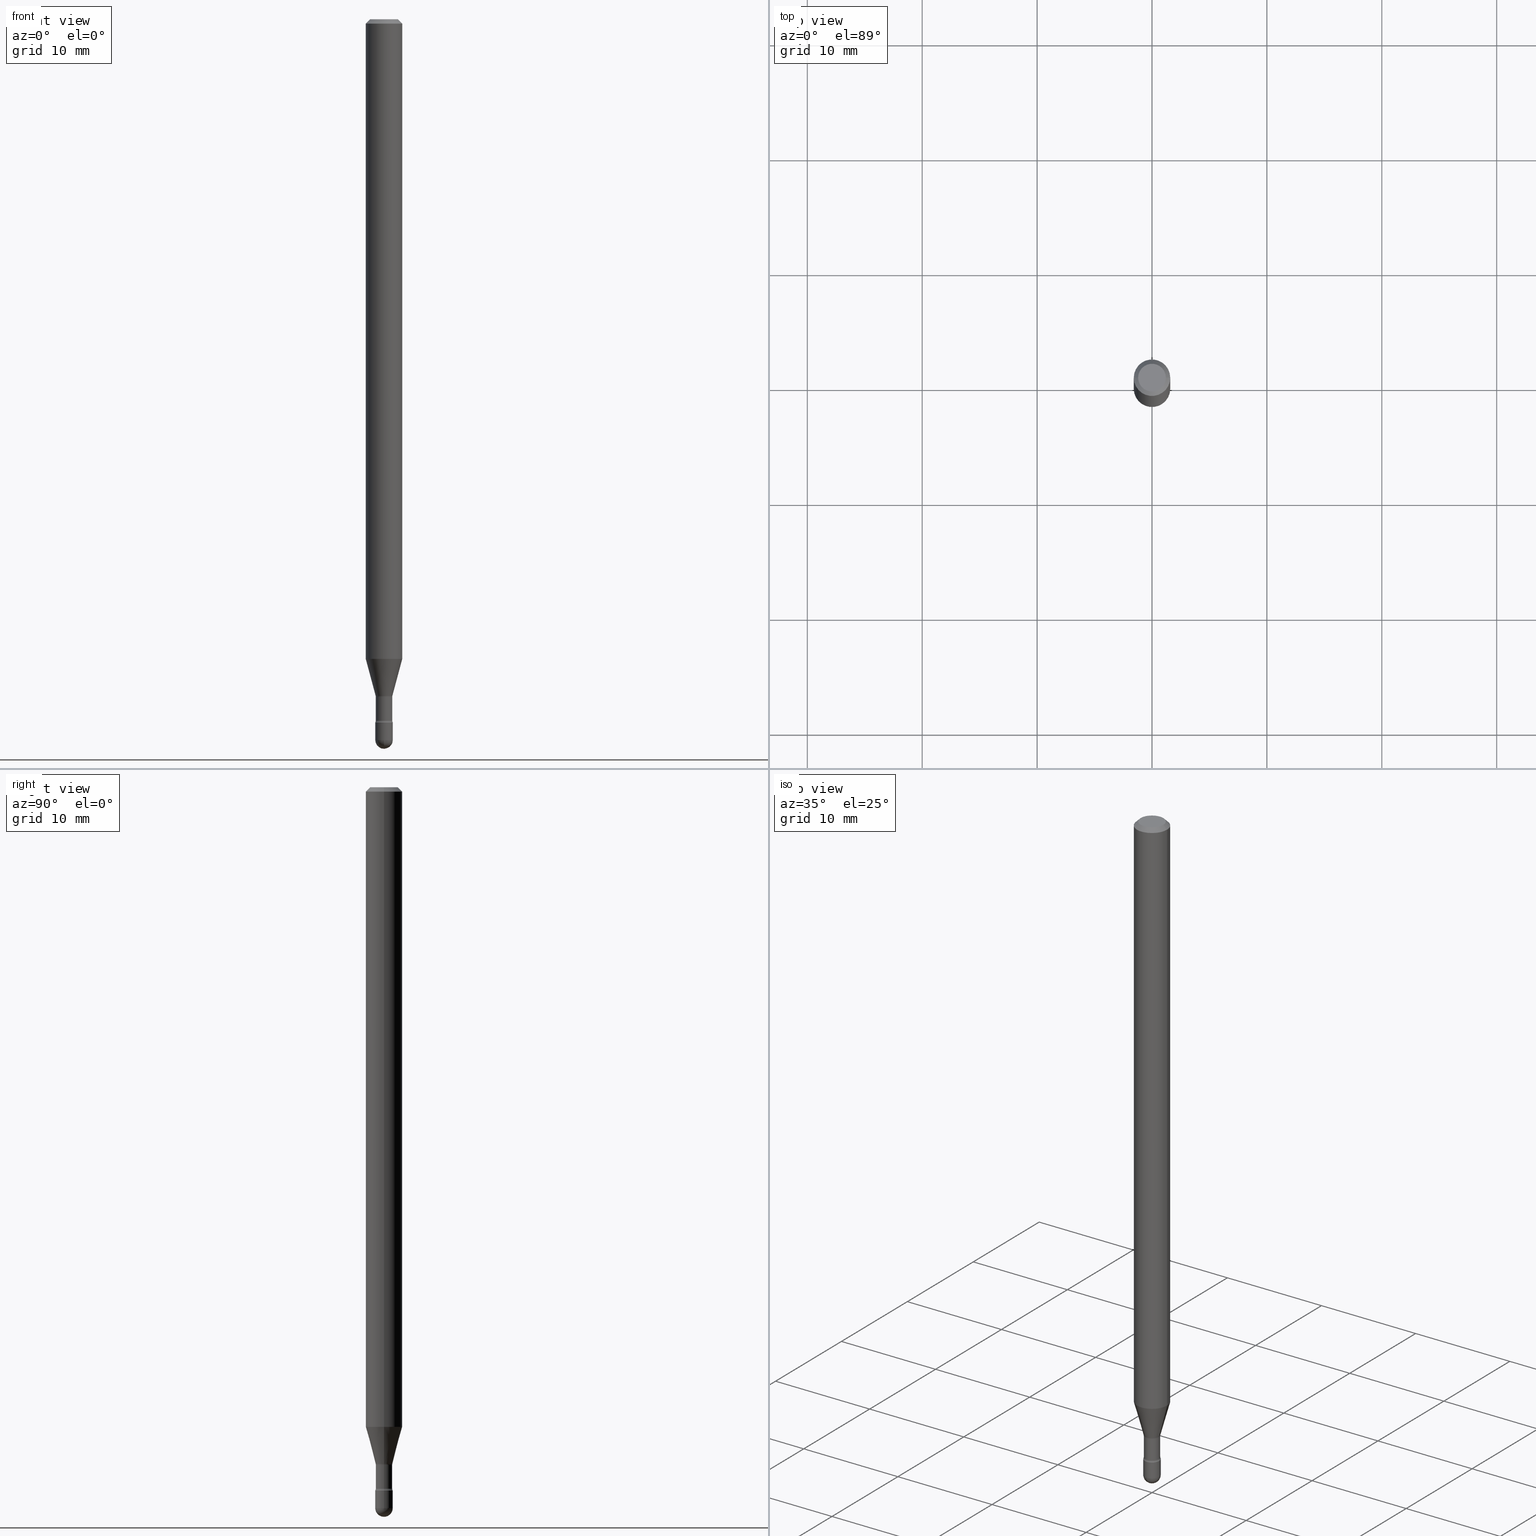
[diagram: canonical four-view strip — front | top / right | iso, engineering-drawing reading convention]
A machine part, canonical four-view strip (front | top / right | iso — engineering-drawing reading convention). The complete STEP part file that produces these views, byte-faithful:
ISO-10303-21;
HEADER;
FILE_DESCRIPTION (( 'STEP AP203' ),
    '1' );
FILE_NAME ('09494.STEP',
    '2024-04-09T23:50:50',
    ( '' ),
    ( '' ),
    'SwSTEP 2.0',
    'SolidWorks 2023',
    '' );
FILE_SCHEMA (( 'CONFIG_CONTROL_DESIGN' ));
ENDSEC;

DATA;
#1 = EDGE_CURVE ( 'NONE', #459, #284, #335, .T. ) ;
#2 = DIRECTION ( 'NONE',  ( 2.445468806185136597E-29, -3.491481338843145583E-15, -1.000000000000000000 ) ) ;
#3 = AXIS2_PLACEMENT_3D ( 'NONE', #187, #111, #494 ) ;
#4 = FACE_OUTER_BOUND ( 'NONE', #18, .T. ) ;
#5 = DIRECTION ( 'NONE',  ( -2.445468806185136597E-29, 3.491481338843145583E-15, 1.000000000000000000 ) ) ;
#6 = DIRECTION ( 'NONE',  ( -2.445468806185136597E-29, 3.491481338843145583E-15, 1.000000000000000000 ) ) ;
#7 = CARTESIAN_POINT ( 'NONE',  ( -0.03000000000000000583, -8.201307205883951433E-15, -2.410000000000000142 ) ) ;
#8 = LINE ( 'NONE', #128, #164 ) ;
#9 = PRODUCT_RELATED_PRODUCT_CATEGORY ( 'detail', '', ( #468 ) ) ;
#10 = CYLINDRICAL_SURFACE ( 'NONE', #400, 0.03000000000000000583 ) ;
#11 = CONICAL_SURFACE ( 'NONE', #256, 0.06250000000000000000, 0.7853981633974483900 ) ;
#12 = CARTESIAN_POINT ( 'NONE',  ( 5.876156823005487003E-29, -8.389594600327222537E-15, -2.402875394747777893 ) ) ;
#13 = EDGE_CURVE ( 'NONE', #284, #353, #172, .T. ) ;
#14 = EDGE_CURVE ( 'NONE', #353, #284, #311, .T. ) ;
#15 = EDGE_LOOP ( 'NONE', ( #547, #322, #376, #356, #333 ) ) ;
#16 = DATE_AND_TIME ( #539, #451 ) ;
#17 = CARTESIAN_POINT ( 'NONE',  ( 3.668203209277725232E-31, -5.237222008264747365E-17, -0.01500000000000008271 ) ) ;
#18 = EDGE_LOOP ( 'NONE', ( #265, #274, #239, #538 ) ) ;
#19 = ORIENTED_EDGE ( 'NONE', *, *, #306, .T. ) ;
#20 = MECHANICAL_CONTEXT ( 'NONE', #463, 'mechanical' ) ;
#21 = AXIS2_PLACEMENT_3D ( 'NONE', #68, #235, #158 ) ;
#22 = PERSON ( 'UNSPECIFIED', 'UNSPECIFIED', 'UNSPECIFIED', ('UNSPECIFIED'), ('UNSPECIFIED'), ('UNSPECIFIED') ) ;
#23 = ORIENTED_EDGE ( 'NONE', *, *, #413, .F. ) ;
#24 = CARTESIAN_POINT ( 'NONE',  ( 5.678316911491112973E-29, -8.107131639694176138E-15, -2.321974787463811030 ) ) ;
#25 = ORIENTED_EDGE ( 'NONE', *, *, #453, .T. ) ;
#26 = DATE_TIME_ROLE ( 'classification_date' ) ;
#27 = CARTESIAN_POINT ( 'NONE',  ( 6.040307951277287977E-29, -8.623958906942569995E-15, -2.470000000000000195 ) ) ;
#28 = ORIENTED_EDGE ( 'NONE', *, *, #110, .T. ) ;
#29 = AXIS2_PLACEMENT_3D ( 'NONE', #48, #291, #474 ) ;
#30 = CARTESIAN_POINT ( 'NONE',  ( 6.114954764896610855E-29, -8.726866376909143979E-15, -2.500000000000000000 ) ) ;
#31 = VERTEX_POINT ( 'NONE', #75 ) ;
#32 = DIRECTION ( 'NONE',  ( 1.000000000000000000, -6.982962677686268288E-15, 0.000000000000000000 ) ) ;
#33 = EDGE_CURVE ( 'NONE', #252, #314, #491, .T. ) ;
#34 = APPROVAL_STATUS ( 'not_yet_approved' ) ;
#35 = ADVANCED_FACE ( 'NONE', ( #199 ), #242, .T. ) ;
#36 = ORIENTED_EDGE ( 'NONE', *, *, #454, .T. ) ;
#37 = CONICAL_SURFACE ( 'NONE', #21, 0.02871111260566397427, 0.2617993877991500740 ) ;
#38 = CIRCLE ( 'NONE', #462, 0.01500000000000001159 ) ;
#39 = SECURITY_CLASSIFICATION ( '', '', #182 ) ;
#40 = CARTESIAN_POINT ( 'NONE',  ( 6.040307951277287977E-29, -8.623958906942569995E-15, -2.470000000000000195 ) ) ;
#41 = CYLINDRICAL_SURFACE ( 'NONE', #408, 0.06250000000000000000 ) ;
#42 = CARTESIAN_POINT ( 'NONE',  ( -0.03000000000000000583, 2.131628207280300972E-16, -1.475680527076471882E-30 ) ) ;
#43 = EDGE_LOOP ( 'NONE', ( #287, #19, #100, #104 ) ) ;
#44 = CARTESIAN_POINT ( 'NONE',  ( -2.131628207279695521E-16, -0.03000000000000861353, -2.470000000000000195 ) ) ;
#45 = FACE_OUTER_BOUND ( 'NONE', #159, .T. ) ;
#46 = AXIS2_PLACEMENT_3D ( 'NONE', #566, #305, #87 ) ;
#47 = DIRECTION ( 'NONE',  ( -2.445468806185136597E-29, 3.491481338843145583E-15, 1.000000000000000000 ) ) ;
#48 = CARTESIAN_POINT ( 'NONE',  ( 5.668822902972440230E-29, -8.093576711702486341E-15, -2.318092501787273108 ) ) ;
#49 = EDGE_CURVE ( 'NONE', #325, #432, #562, .T. ) ;
#50 = DIRECTION ( 'NONE',  ( 0.2588190451025213501, 1.565188264969621968E-15, 0.9659258262890682012 ) ) ;
#51 = DIRECTION ( 'NONE',  ( -2.445468806185136597E-29, 3.491481338843145583E-15, 1.000000000000000000 ) ) ;
#52 = EDGE_CURVE ( 'NONE', #207, #31, #229, .T. ) ;
#53 = EDGE_CURVE ( 'NONE', #366, #69, #557, .T. ) ;
#54 =( NAMED_UNIT ( * ) SI_UNIT ( $, .STERADIAN. ) SOLID_ANGLE_UNIT ( ) );
#55 = DIRECTION ( 'NONE',  ( 1.000000000000000000, -6.982962677686266711E-15, 4.876176775795935793E-29 ) ) ;
#56 = TOROIDAL_SURFACE ( 'NONE', #409, 0.04320000000000000923, 0.01500000000000001159 ) ;
#57 = CARTESIAN_POINT ( 'NONE',  ( 3.316907271900976096E-16, 0.04749999999999999362, 3.181781981480094004E-17 ) ) ;
#58 = ORIENTED_EDGE ( 'NONE', *, *, #516, .F. ) ;
#59 = COORDINATED_UNIVERSAL_TIME_OFFSET ( 5, 0, .BEHIND. ) ;
#60 = CYLINDRICAL_SURFACE ( 'NONE', #116, 0.02819999999999999590 ) ;
#61 = ADVANCED_FACE ( 'NONE', ( #180 ), #41, .T. ) ;
#62 = PERSON_AND_ORGANIZATION ( #22, #66 ) ;
#63 = LOCAL_TIME ( 19, 50, 50.00000000000000000, #59 ) ;
#64 = AXIS2_PLACEMENT_3D ( 'NONE', #479, #531, #345 ) ;
#65 = DIRECTION ( 'NONE',  ( 1.000000000000000000, -6.982962677686269866E-15, 4.883557194083114583E-29 ) ) ;
#66 = ORGANIZATION ( 'UNSPECIFIED', 'UNSPECIFIED', '' ) ;
#67 = VERTEX_POINT ( 'NONE', #297 ) ;
#68 = CARTESIAN_POINT ( 'NONE',  ( 5.668822902972440230E-29, -8.093576711702486341E-15, -2.318092501787273108 ) ) ;
#69 = VERTEX_POINT ( 'NONE', #395 ) ;
#70 = EDGE_CURVE ( 'NONE', #67, #325, #540, .T. ) ;
#71 = FACE_OUTER_BOUND ( 'NONE', #73, .T. ) ;
#72 = ORIENTED_EDGE ( 'NONE', *, *, #169, .T. ) ;
#73 = EDGE_LOOP ( 'NONE', ( #418, #321, #401, #185 ) ) ;
#74 = CIRCLE ( 'NONE', #379, 0.06250000000000000000 ) ;
#75 = CARTESIAN_POINT ( 'NONE',  ( 0.03000000000000000583, -8.728703347107864943E-15, -2.470000000000000195 ) ) ;
#76 =( NAMED_UNIT ( * ) PLANE_ANGLE_UNIT ( ) SI_UNIT ( $, .RADIAN. ) );
#77 = EDGE_CURVE ( 'NONE', #370, #155, #8, .T. ) ;
#78 = EDGE_CURVE ( 'NONE', #546, #122, #299, .T. ) ;
#79 = DIRECTION ( 'NONE',  ( -7.105427357601001070E-15, -1.000000000000000000, 0.000000000000000000 ) ) ;
#80 = DIRECTION ( 'NONE',  ( 1.000000000000000000, -6.982962677686268288E-15, 0.000000000000000000 ) ) ;
#81 = CARTESIAN_POINT ( 'NONE',  ( -0.06250000000000000000, 3.840629472727441958E-16, -0.01500000000000008271 ) ) ;
#82 = AXIS2_PLACEMENT_3D ( 'NONE', #240, #422, #32 ) ;
#83 = ORIENTED_EDGE ( 'NONE', *, *, #152, .T. ) ;
#84 = CIRCLE ( 'NONE', #483, 0.02999999999999997807 ) ;
#85 = CARTESIAN_POINT ( 'NONE',  ( -0.06250000000000000000, -7.209205265032763284E-15, -2.191990657300388001 ) ) ;
#86 = SPHERICAL_SURFACE ( 'NONE', #558, 0.02999999999999997807 ) ;
#87 = DIRECTION ( 'NONE',  ( 1.000000000000000000, -6.982962677686270655E-15, 4.883557194083114583E-29 ) ) ;
#88 = CARTESIAN_POINT ( 'NONE',  ( -0.04749999999999999362, 3.578768372314208041E-16, -8.274703207154778150E-17 ) ) ;
#89 = CYLINDRICAL_SURFACE ( 'NONE', #426, 0.02819999999999999590 ) ;
#90 = ORIENTED_EDGE ( 'NONE', *, *, #14, .T. ) ;
#91 = AXIS2_PLACEMENT_3D ( 'NONE', #288, #469, #429 ) ;
#92 = LINE ( 'NONE', #438, #427 ) ;
#93 = AXIS2_PLACEMENT_3D ( 'NONE', #12, #357, #222 ) ;
#94 = FACE_OUTER_BOUND ( 'NONE', #565, .T. ) ;
#95 = FACE_OUTER_BOUND ( 'NONE', #108, .T. ) ;
#96 = ADVANCED_FACE ( 'NONE', ( #385 ), #471, .F. ) ;
#97 = CYLINDRICAL_SURFACE ( 'NONE', #247, 0.06250000000000000000 ) ;
#98 = PERSON_AND_ORGANIZATION ( #22, #66 ) ;
#99 = CARTESIAN_POINT ( 'NONE',  ( 0.02819999999999999590, -1.969195475107510260E-16, 4.780733988912474930E-16 ) ) ;
#100 = ORIENTED_EDGE ( 'NONE', *, *, #458, .T. ) ;
#101 = DESIGN_CONTEXT ( 'detailed design', #508, 'design' ) ;
#102 = DIRECTION ( 'NONE',  ( 1.000000000000000000, 0.000000000000000000, 0.000000000000000000 ) ) ;
#103 = CONICAL_SURFACE ( 'NONE', #29, 0.02871111260566397427, 0.2617993877991500740 ) ;
#104 = ORIENTED_EDGE ( 'NONE', *, *, #49, .F. ) ;
#105 = CC_DESIGN_DATE_AND_TIME_ASSIGNMENT ( #151, #26, ( #39 ) ) ;
#106 = VECTOR ( 'NONE', #177, 39.37007874015748143 ) ;
#107 = AXIS2_PLACEMENT_3D ( 'NONE', #57, #219, #253 ) ;
#108 = EDGE_LOOP ( 'NONE', ( #373, #310, #112, #316 ) ) ;
#109 = EDGE_CURVE ( 'NONE', #155, #432, #211, .T. ) ;
#110 = EDGE_CURVE ( 'NONE', #546, #459, #124, .T. ) ;
#111 = DIRECTION ( 'NONE',  ( -2.438088387897960049E-29, 3.491481338843145188E-15, 1.000000000000000000 ) ) ;
#112 = ORIENTED_EDGE ( 'NONE', *, *, #169, .F. ) ;
#113 = PERSON_AND_ORGANIZATION ( #22, #66 ) ;
#114 = ORIENTED_EDGE ( 'NONE', *, *, #329, .T. ) ;
#115 = ORIENTED_EDGE ( 'NONE', *, *, #453, .F. ) ;
#116 = AXIS2_PLACEMENT_3D ( 'NONE', #490, #365, #447 ) ;
#117 = CIRCLE ( 'NONE', #136, 0.01500000000000002720 ) ;
#118 = ORIENTED_EDGE ( 'NONE', *, *, #499, .T. ) ;
#119 = DIRECTION ( 'NONE',  ( -2.445468806185136877E-29, 3.491481338843145188E-15, 1.000000000000000000 ) ) ;
#120 = MANIFOLD_SOLID_BREP ( 'Body-Move/Copy2[1]', #419 ) ;
#121 = DIRECTION ( 'NONE',  ( 1.000000000000000000, -6.982962677686266711E-15, 4.876176775795935793E-29 ) ) ;
#122 = VERTEX_POINT ( 'NONE', #486 ) ;
#123 = FACE_OUTER_BOUND ( 'NONE', #502, .T. ) ;
#124 = CIRCLE ( 'NONE', #64, 0.02819999999999999590 ) ;
#125 = AXIS2_PLACEMENT_3D ( 'NONE', #40, #553, #509 ) ;
#126 = FACE_OUTER_BOUND ( 'NONE', #43, .T. ) ;
#127 = ADVANCED_FACE ( 'NONE', ( #250 ), #336, .F. ) ;
#128 = CARTESIAN_POINT ( 'NONE',  ( -0.02871111260566397427, -7.889571986727037961E-15, -2.318092501787273108 ) ) ;
#129 = DIRECTION ( 'NONE',  ( 1.000000000000000000, -6.982962677686262766E-15, 0.000000000000000000 ) ) ;
#130 = CARTESIAN_POINT ( 'NONE',  ( -0.02999999999999999889, -8.306051646049246381E-15, -2.410000000000000142 ) ) ;
#131 = CARTESIAN_POINT ( 'NONE',  ( 0.02999999999999999889, -8.623958906942569995E-15, -2.410000000000000142 ) ) ;
#132 = CARTESIAN_POINT ( 'NONE',  ( 0.04320000000000000229, -8.408795627370222999E-15, -2.321974787463811030 ) ) ;
#133 = ADVANCED_FACE ( 'NONE', ( #95 ), #89, .T. ) ;
#134 = EDGE_LOOP ( 'NONE', ( #446, #361, #260, #72 ) ) ;
#135 = TOROIDAL_SURFACE ( 'NONE', #244, 0.04320000000000000229, 0.01500000000000002720 ) ;
#136 = AXIS2_PLACEMENT_3D ( 'NONE', #475, #386, #430 ) ;
#137 = CC_DESIGN_SECURITY_CLASSIFICATION ( #39, ( #380 ) ) ;
#138 = APPLICATION_PROTOCOL_DEFINITION ( 'international standard', 'config_control_design', 1994, #463 ) ;
#139 = CARTESIAN_POINT ( 'NONE',  ( 5.360444775877352229E-29, -7.653294474882825901E-15, -2.191990657300388001 ) ) ;
#140 = CARTESIAN_POINT ( 'NONE',  ( -1.169113584055446105E-44, 1.669184350826100908E-30, 4.780733988912460139E-16 ) ) ;
#141 = DATE_AND_TIME ( #360, #63 ) ;
#142 = DIRECTION ( 'NONE',  ( 1.000000000000000000, -6.982962677686267499E-15, 4.884662768193073002E-29 ) ) ;
#143 = ORIENTED_EDGE ( 'NONE', *, *, #52, .T. ) ;
#144 = ADVANCED_FACE ( 'NONE', ( #259 ), #135, .F. ) ;
#145 = DATE_TIME_ROLE ( 'creation_date' ) ;
#146 = DIRECTION ( 'NONE',  ( 1.000000000000000000, -6.982962677686266711E-15, 4.852736867747366207E-29 ) ) ;
#147 = EDGE_LOOP ( 'NONE', ( #396, #191, #496, #338 ) ) ;
#148 = PERSON_AND_ORGANIZATION ( #22, #66 ) ;
#149 = AXIS2_PLACEMENT_3D ( 'NONE', #24, #411, #65 ) ;
#150 = ORIENTED_EDGE ( 'NONE', *, *, #33, .T. ) ;
#151 = DATE_AND_TIME ( #542, #397 ) ;
#152 = EDGE_CURVE ( 'NONE', #200, #207, #290, .T. ) ;
#153 = ORIENTED_EDGE ( 'NONE', *, *, #282, .F. ) ;
#154 = ADVANCED_FACE ( 'NONE', ( #123 ), #103, .T. ) ;
#155 = VERTEX_POINT ( 'NONE', #85 ) ;
#156 = EDGE_CURVE ( 'NONE', #200, #252, #202, .T. ) ;
#157 = AXIS2_PLACEMENT_3D ( 'NONE', #405, #217, #102 ) ;
#158 = DIRECTION ( 'NONE',  ( 1.000000000000000000, -6.982962677686280121E-15, 0.000000000000000000 ) ) ;
#159 = EDGE_LOOP ( 'NONE', ( #412, #415 ) ) ;
#160 = DIRECTION ( 'NONE',  ( 6.982962677686265922E-15, 1.000000000000000000, 0.000000000000000000 ) ) ;
#161 = ORIENTED_EDGE ( 'NONE', *, *, #358, .T. ) ;
#162 = DIRECTION ( 'NONE',  ( 1.000000000000000000, -6.982962677686268288E-15, 0.000000000000000000 ) ) ;
#163 = APPROVAL_DATE_TIME ( #456, #218 ) ;
#164 = VECTOR ( 'NONE', #294, 39.37007874015747433 ) ;
#165 = ORIENTED_EDGE ( 'NONE', *, *, #262, .T. ) ;
#166 = AXIS2_PLACEMENT_3D ( 'NONE', #464, #196, #79 ) ;
#167 = DIRECTION ( 'NONE',  ( -2.445468806185136597E-29, 3.491481338843145583E-15, 1.000000000000000000 ) ) ;
#168 = DIRECTION ( 'NONE',  ( 1.000000000000000000, -6.982962677686266711E-15, 4.947382444955205209E-29 ) ) ;
#169 = EDGE_CURVE ( 'NONE', #69, #122, #363, .T. ) ;
#170 = CARTESIAN_POINT ( 'NONE',  ( 3.668203209277725232E-31, -5.237222008264747365E-17, -0.01500000000000008271 ) ) ;
#171 = DIRECTION ( 'NONE',  ( -2.445468806185136877E-29, 3.491481338843145188E-15, 1.000000000000000000 ) ) ;
#172 = CIRCLE ( 'NONE', #300, 0.02999999999999999889 ) ;
#173 = AXIS2_PLACEMENT_3D ( 'NONE', #139, #47, #309 ) ;
#174 = CARTESIAN_POINT ( 'NONE',  ( -1.169113584055446105E-44, 1.669184350826100908E-30, 4.780733988912460139E-16 ) ) ;
#175 = DIRECTION ( 'NONE',  ( 1.000000000000000000, -6.982962677686265922E-15, 4.876176775795935793E-29 ) ) ;
#176 = CARTESIAN_POINT ( 'NONE',  ( 6.040307951277287977E-29, -8.623958906942569995E-15, -2.470000000000000195 ) ) ;
#177 = DIRECTION ( 'NONE',  ( -2.445468806185136877E-29, 3.491481338843145188E-15, 1.000000000000000000 ) ) ;
#178 = ORIENTED_EDGE ( 'NONE', *, *, #33, .F. ) ;
#179 = CARTESIAN_POINT ( 'NONE',  ( -0.02871111260566397427, -7.549388625879900623E-15, -2.318092501787273108 ) ) ;
#180 = FACE_OUTER_BOUND ( 'NONE', #466, .T. ) ;
#181 = VECTOR ( 'NONE', #264, 39.37007874015748143 ) ;
#182 = SECURITY_CLASSIFICATION_LEVEL ( 'unclassified' ) ;
#183 = CARTESIAN_POINT ( 'NONE',  ( 0.02819999999999999590, -8.586514147837976028E-15, -2.402875394747777893 ) ) ;
#184 = FACE_OUTER_BOUND ( 'NONE', #457, .T. ) ;
#185 = ORIENTED_EDGE ( 'NONE', *, *, #437, .F. ) ;
#186 = APPROVAL_STATUS ( 'not_yet_approved' ) ;
#187 = CARTESIAN_POINT ( 'NONE',  ( 5.893579822906179826E-29, -8.414470026611981678E-15, -2.410000000000000142 ) ) ;
#188 = APPROVAL_PERSON_ORGANIZATION ( #221, #535, #402 ) ;
#189 = CIRCLE ( 'NONE', #473, 0.06250000000000000000 ) ;
#190 = PERSON_AND_ORGANIZATION ( #22, #66 ) ;
#191 = ORIENTED_EDGE ( 'NONE', *, *, #203, .T. ) ;
#192 = EDGE_CURVE ( 'NONE', #370, #366, #201, .T. ) ;
#193 = ORIENTED_EDGE ( 'NONE', *, *, #110, .F. ) ;
#194 = DIRECTION ( 'NONE',  ( -6.982962677686266711E-15, -1.000000000000000000, 3.491481338843145583E-15 ) ) ;
#195 = ORIENTED_EDGE ( 'NONE', *, *, #52, .F. ) ;
#196 = DIRECTION ( 'NONE',  ( -1.000000000000000000, 7.105427357601001070E-15, -4.926315508542082329E-29 ) ) ;
#197 = DIRECTION ( 'NONE',  ( 1.000000000000000000, -6.982962677686262766E-15, 0.000000000000000000 ) ) ;
#198 = FACE_OUTER_BOUND ( 'NONE', #318, .T. ) ;
#199 = FACE_OUTER_BOUND ( 'NONE', #15, .T. ) ;
#200 = VERTEX_POINT ( 'NONE', #295 ) ;
#201 = CIRCLE ( 'NONE', #529, 0.02871111260566397427 ) ;
#202 = LINE ( 'NONE', #42, #420 ) ;
#203 = EDGE_CURVE ( 'NONE', #370, #122, #117, .T. ) ;
#204 = CARTESIAN_POINT ( 'NONE',  ( 2.023552857353652888E-45, -2.889097183224559242E-31, -8.274703207154537794E-17 ) ) ;
#205 = DIRECTION ( 'NONE',  ( 1.000000000000000000, -6.982962677686270655E-15, 4.883557194083114583E-29 ) ) ;
#206 = DIRECTION ( 'NONE',  ( -2.445468806185136597E-29, 3.491481338843145583E-15, 1.000000000000000000 ) ) ;
#207 = VERTEX_POINT ( 'NONE', #44 ) ;
#208 = DIMENSIONAL_EXPONENTS ( 1.000000000000000000, 0.000000000000000000, 0.000000000000000000, 0.000000000000000000, 0.000000000000000000, 0.000000000000000000, 0.000000000000000000 ) ;
#209 = CARTESIAN_POINT ( 'NONE',  ( 0.06250000000000000000, -4.364351673553899931E-16, 4.780733988912490708E-16 ) ) ;
#210 = DIRECTION ( 'NONE',  ( -2.445468806185136597E-29, 3.491481338843145583E-15, 1.000000000000000000 ) ) ;
#211 = LINE ( 'NONE', #564, #482 ) ;
#212 = CIRCLE ( 'NONE', #267, 0.04749999999999999362 ) ;
#213 = DIRECTION ( 'NONE',  ( 0.7071067811865475727, -7.319954787623256045E-15, -0.7071067811865474617 ) ) ;
#214 = DIRECTION ( 'NONE',  ( 1.000000000000000000, -6.982962677686255667E-15, 0.000000000000000000 ) ) ;
#215 = CARTESIAN_POINT ( 'NONE',  ( 2.023552857353652888E-45, -2.889097183224559242E-31, -8.274703207154537794E-17 ) ) ;
#216 = DIRECTION ( 'NONE',  ( -6.982962677686266711E-15, -1.000000000000000000, 3.491481338843145583E-15 ) ) ;
#217 = DIRECTION ( 'NONE',  ( 0.000000000000000000, 0.000000000000000000, 1.000000000000000000 ) ) ;
#218 = APPROVAL ( #34, 'UNSPECIFIED' ) ;
#219 = DIRECTION ( 'NONE',  ( 2.438088387897960049E-29, -3.491481338843145188E-15, -1.000000000000000000 ) ) ;
#220 = VECTOR ( 'NONE', #50, 39.37007874015747433 ) ;
#221 = PERSON_AND_ORGANIZATION ( #22, #66 ) ;
#222 = DIRECTION ( 'NONE',  ( 1.000000000000000000, -6.982962677686278543E-15, 0.000000000000000000 ) ) ;
#223 = CC_DESIGN_DATE_AND_TIME_ASSIGNMENT ( #16, #145, ( #278 ) ) ;
#224 = EDGE_LOOP ( 'NONE', ( #193, #330, #90, #236 ) ) ;
#225 = APPROVAL_ROLE ( '' ) ;
#226 = ORIENTED_EDGE ( 'NONE', *, *, #78, .F. ) ;
#227 = PERSON_AND_ORGANIZATION_ROLE ( 'design_supplier' ) ;
#228 = ADVANCED_FACE ( 'NONE', ( #126 ), #372, .T. ) ;
#229 = CIRCLE ( 'NONE', #91, 0.03000000000000000583 ) ;
#230 = AXIS2_PLACEMENT_3D ( 'NONE', #487, #258, #537 ) ;
#231 = PERSON_AND_ORGANIZATION_ROLE ( 'creator' ) ;
#232 = PLANE ( 'NONE',  #3 ) ;
#233 = ORIENTED_EDGE ( 'NONE', *, *, #109, .T. ) ;
#234 = CALENDAR_DATE ( 2024, 9, 4 ) ;
#235 = DIRECTION ( 'NONE',  ( -2.445468806185136597E-29, 3.491481338843145583E-15, 1.000000000000000000 ) ) ;
#236 = ORIENTED_EDGE ( 'NONE', *, *, #1, .F. ) ;
#237 = VERTEX_POINT ( 'NONE', #521 ) ;
#238 = AXIS2_PLACEMENT_3D ( 'NONE', #17, #478, #431 ) ;
#239 = ORIENTED_EDGE ( 'NONE', *, *, #243, .T. ) ;
#240 = CARTESIAN_POINT ( 'NONE',  ( 5.893579822906179826E-29, -8.414470026611981678E-15, -2.410000000000000142 ) ) ;
#241 = CC_DESIGN_PERSON_AND_ORGANIZATION_ASSIGNMENT ( #354, #533, ( #39 ) ) ;
#242 = CYLINDRICAL_SURFACE ( 'NONE', #350, 0.03000000000000000583 ) ;
#243 = EDGE_CURVE ( 'NONE', #544, #281, #293, .T. ) ;
#244 = AXIS2_PLACEMENT_3D ( 'NONE', #439, #51, #340 ) ;
#245 = CARTESIAN_POINT ( 'NONE',  ( 0.03000000000000000583, -8.623958906942569995E-15, -2.410000000000000142 ) ) ;
#246 = CARTESIAN_POINT ( 'NONE',  ( -1.169113584055446105E-44, 1.669184350826100908E-30, 4.780733988912460139E-16 ) ) ;
#247 = AXIS2_PLACEMENT_3D ( 'NONE', #174, #339, #146 ) ;
#248 = DIRECTION ( 'NONE',  ( 1.000000000000000000, -6.982962677686280121E-15, 0.000000000000000000 ) ) ;
#249 = DIRECTION ( 'NONE',  ( -2.445468806185136597E-29, 3.491481338843145583E-15, 1.000000000000000000 ) ) ;
#250 = FACE_OUTER_BOUND ( 'NONE', #421, .T. ) ;
#251 = EDGE_CURVE ( 'NONE', #366, #370, #327, .T. ) ;
#252 = VERTEX_POINT ( 'NONE', #130 ) ;
#253 = DIRECTION ( 'NONE',  ( -1.000000000000000000, 6.982962677686265922E-15, -4.876176775795935793E-29 ) ) ;
#254 = CARTESIAN_POINT ( 'NONE',  ( 6.040307951277287977E-29, -8.623958906942569995E-15, -2.470000000000000195 ) ) ;
#255 = AXIS2_PLACEMENT_3D ( 'NONE', #510, #465, #80 ) ;
#256 = AXIS2_PLACEMENT_3D ( 'NONE', #331, #428, #555 ) ;
#257 = CARTESIAN_POINT ( 'NONE',  ( 5.678316911491112973E-29, -8.107131639694176138E-15, -2.321974787463811030 ) ) ;
#258 = DIRECTION ( 'NONE',  ( -2.445468806185136597E-29, 3.491481338843145583E-15, 1.000000000000000000 ) ) ;
#259 = FACE_OUTER_BOUND ( 'NONE', #147, .T. ) ;
#260 = ORIENTED_EDGE ( 'NONE', *, *, #53, .T. ) ;
#261 = DIRECTION ( 'NONE',  ( -2.445468806185136597E-29, 3.491481338843145583E-15, 1.000000000000000000 ) ) ;
#262 = EDGE_CURVE ( 'NONE', #31, #314, #92, .T. ) ;
#263 = ADVANCED_FACE ( 'NONE', ( #198 ), #56, .F. ) ;
#264 = DIRECTION ( 'NONE',  ( -2.445468806185136877E-29, 3.491481338843145188E-15, 1.000000000000000000 ) ) ;
#265 = ORIENTED_EDGE ( 'NONE', *, *, #109, .F. ) ;
#266 = CLOSED_SHELL ( 'NONE', ( #144, #133, #96, #228, #61, #551, #154, #449, #285, #349, #127, #263, #543, #515 ) ) ;
#267 = AXIS2_PLACEMENT_3D ( 'NONE', #215, #434, #142 ) ;
#268 = APPROVAL_DATE_TIME ( #448, #467 ) ;
#269 = CARTESIAN_POINT ( 'NONE',  ( 3.668203209277725232E-31, -5.237222008264747365E-17, -0.01500000000000008271 ) ) ;
#270 = ORIENTED_EDGE ( 'NONE', *, *, #13, .F. ) ;
#271 = DIRECTION ( 'NONE',  ( 1.000000000000000000, -6.982962677686266711E-15, 0.000000000000000000 ) ) ;
#272 = CIRCLE ( 'NONE', #301, 0.02999999999999999889 ) ;
#273 = CARTESIAN_POINT ( 'NONE',  ( -0.02819999999999999590, -8.195264377363413638E-15, -2.402875394747777893 ) ) ;
#274 = ORIENTED_EDGE ( 'NONE', *, *, #369, .T. ) ;
#275 = CARTESIAN_POINT ( 'NONE',  ( -0.04320000000000000923, -8.082640138478858353E-15, -2.402875394747777449 ) ) ;
#276 = EDGE_LOOP ( 'NONE', ( #226, #28, #161, #500 ) ) ;
#277 = COORDINATED_UNIVERSAL_TIME_OFFSET ( 5, 0, .BEHIND. ) ;
#278 = PRODUCT_DEFINITION ( 'UNKNOWN', '', #380, #101 ) ;
#279 = VERTEX_POINT ( 'NONE', #30 ) ;
#280 = LINE ( 'NONE', #444, #445 ) ;
#281 = VERTEX_POINT ( 'NONE', #283 ) ;
#282 = EDGE_CURVE ( 'NONE', #279, #207, #319, .T. ) ;
#283 = CARTESIAN_POINT ( 'NONE',  ( 0.06250000000000000000, -4.888073874380391431E-16, -0.01500000000000008271 ) ) ;
#284 = VERTEX_POINT ( 'NONE', #245 ) ;
#285 = ADVANCED_FACE ( 'NONE', ( #561 ), #11, .T. ) ;
#287 = ORIENTED_EDGE ( 'NONE', *, *, #70, .F. ) ;
#286 = EDGE_CURVE ( 'NONE', #31, #237, #436, .T. ) ;
#288 = CARTESIAN_POINT ( 'NONE',  ( 6.040307951277287977E-29, -8.623958906942569995E-15, -2.470000000000000195 ) ) ;
#289 = ORIENTED_EDGE ( 'NONE', *, *, #454, .F. ) ;
#290 = CIRCLE ( 'NONE', #362, 0.03000000000000000583 ) ;
#291 = DIRECTION ( 'NONE',  ( -2.445468806185136597E-29, 3.491481338843145583E-15, 1.000000000000000000 ) ) ;
#292 = AXIS2_PLACEMENT_3D ( 'NONE', #170, #2, #334 ) ;
#293 = LINE ( 'NONE', #209, #352 ) ;
#294 = DIRECTION ( 'NONE',  ( -0.2588190451025213501, 5.211531920934551042E-15, 0.9659258262890682012 ) ) ;
#295 = CARTESIAN_POINT ( 'NONE',  ( -0.03000000000000000583, -8.306051646049246381E-15, -2.470000000000000195 ) ) ;
#296 = CARTESIAN_POINT ( 'NONE',  ( 6.040307951277287977E-29, -8.623958906942569995E-15, -2.470000000000000195 ) ) ;
#297 = CARTESIAN_POINT ( 'NONE',  ( 0.04749999999999999362, -4.035134999187581581E-16, -8.274703207154280181E-17 ) ) ;
#298 = DIRECTION ( 'NONE',  ( 6.982962677686265922E-15, 1.000000000000000000, 0.000000000000000000 ) ) ;
#299 = LINE ( 'NONE', #476, #106 ) ;
#300 = AXIS2_PLACEMENT_3D ( 'NONE', #554, #167, #162 ) ;
#301 = AXIS2_PLACEMENT_3D ( 'NONE', #485, #484, #398 ) ;
#302 = ORIENTED_EDGE ( 'NONE', *, *, #13, .T. ) ;
#303 = MANIFOLD_SOLID_BREP ( 'Body-Move/Copy2[2]', #266 ) ;
#304 = CARTESIAN_POINT ( 'NONE',  ( 0.02871111260566397427, -8.294065339462685090E-15, -2.318092501787273108 ) ) ;
#305 = DIRECTION ( 'NONE',  ( -2.445468806185136597E-29, 3.491481338843145583E-15, 1.000000000000000000 ) ) ;
#306 = EDGE_CURVE ( 'NONE', #67, #281, #280, .T. ) ;
#307 = LINE ( 'NONE', #99, #181 ) ;
#308 = APPROVAL_STATUS ( 'not_yet_approved' ) ;
#309 = DIRECTION ( 'NONE',  ( 1.000000000000000000, -6.982962677686262766E-15, 0.000000000000000000 ) ) ;
#310 = ORIENTED_EDGE ( 'NONE', *, *, #78, .T. ) ;
#311 = CIRCLE ( 'NONE', #255, 0.02999999999999999889 ) ;
#312 = CIRCLE ( 'NONE', #230, 0.02819999999999999590 ) ;
#313 = APPLICATION_PROTOCOL_DEFINITION ( 'international standard', 'config_control_design', 1994, #508 ) ;
#314 = VERTEX_POINT ( 'NONE', #131 ) ;
#315 = PERSON_AND_ORGANIZATION ( #22, #66 ) ;
#316 = ORIENTED_EDGE ( 'NONE', *, *, #358, .F. ) ;
#317 = CARTESIAN_POINT ( 'NONE',  ( 0.06250000000000000000, -8.089729642238217570E-15, -2.191990657300388001 ) ) ;
#318 = EDGE_LOOP ( 'NONE', ( #58, #23, #404, #302 ) ) ;
#319 = CIRCLE ( 'NONE', #166, 0.02999999999999997807 ) ;
#320 = DIRECTION ( 'NONE',  ( -2.445468806185136597E-29, 3.491481338843145583E-15, 1.000000000000000000 ) ) ;
#321 = ORIENTED_EDGE ( 'NONE', *, *, #282, .T. ) ;
#322 = ORIENTED_EDGE ( 'NONE', *, *, #156, .T. ) ;
#323 = CC_DESIGN_PERSON_AND_ORGANIZATION_ASSIGNMENT ( #190, #231, ( #278 ) ) ;
#324 = ORIENTED_EDGE ( 'NONE', *, *, #77, .T. ) ;
#325 = VERTEX_POINT ( 'NONE', #88 ) ;
#326 = VECTOR ( 'NONE', #332, 39.37007874015748143 ) ;
#327 = CIRCLE ( 'NONE', #522, 0.02871111260566397427 ) ;
#328 = CC_DESIGN_APPROVAL ( #467, ( #380 ) ) ;
#329 = EDGE_CURVE ( 'NONE', #279, #237, #84, .T. ) ;
#330 = ORIENTED_EDGE ( 'NONE', *, *, #516, .T. ) ;
#331 = CARTESIAN_POINT ( 'NONE',  ( 3.668203209277725232E-31, -5.237222008264747365E-17, -0.01500000000000008271 ) ) ;
#332 = DIRECTION ( 'NONE',  ( -0.7071067811865475727, 2.468850131082257455E-15, -0.7071067811865474617 ) ) ;
#333 = ORIENTED_EDGE ( 'NONE', *, *, #286, .T. ) ;
#334 = DIRECTION ( 'NONE',  ( -1.000000000000000000, 6.982962677686266711E-15, 0.000000000000000000 ) ) ;
#335 = CIRCLE ( 'NONE', #503, 0.01500000000000001159 ) ;
#336 = PLANE ( 'NONE',  #460 ) ;
#337 = CIRCLE ( 'NONE', #173, 0.06250000000000000000 ) ;
#338 = ORIENTED_EDGE ( 'NONE', *, *, #53, .F. ) ;
#339 = DIRECTION ( 'NONE',  ( -2.445468806185136597E-29, 3.491481338843145583E-15, 1.000000000000000000 ) ) ;
#340 = DIRECTION ( 'NONE',  ( 1.000000000000000000, -6.982962677686269866E-15, 4.883557194083114583E-29 ) ) ;
#341 = ORIENTED_EDGE ( 'NONE', *, *, #77, .F. ) ;
#342 = DIRECTION ( 'NONE',  ( -2.445468806185136877E-29, 3.491481338843145188E-15, 1.000000000000000000 ) ) ;
#343 = ADVANCED_FACE ( 'NONE', ( #391 ), #10, .T. ) ;
#344 = CARTESIAN_POINT ( 'NONE',  ( 6.040307951277287977E-29, -8.623958906942569995E-15, -2.470000000000000195 ) ) ;
#345 = DIRECTION ( 'NONE',  ( 1.000000000000000000, -6.982962677686278543E-15, 0.000000000000000000 ) ) ;
#346 = ADVANCED_BREP_SHAPE_REPRESENTATION ( '09494', ( #120, #303, #157 ), #501 ) ;
#347 = CARTESIAN_POINT ( 'NONE',  ( -0.06250000000000000000, -3.408744137632673676E-15, -0.01500000000000008271 ) ) ;
#348 = DIRECTION ( 'NONE',  ( 1.000000000000000000, -6.982962677686267499E-15, 4.884662768193073002E-29 ) ) ;
#349 = ADVANCED_FACE ( 'NONE', ( #45 ), #534, .F. ) ;
#350 = AXIS2_PLACEMENT_3D ( 'NONE', #423, #381, #121 ) ;
#351 = EDGE_CURVE ( 'NONE', #325, #67, #212, .T. ) ;
#352 = VECTOR ( 'NONE', #523, 39.37007874015748143 ) ;
#353 = VERTEX_POINT ( 'NONE', #7 ) ;
#354 = PERSON_AND_ORGANIZATION ( #22, #66 ) ;
#355 = DIRECTION ( 'NONE',  ( 1.000000000000000000, -6.982962677686265922E-15, 4.883557194083112340E-29 ) ) ;
#356 = ORIENTED_EDGE ( 'NONE', *, *, #262, .F. ) ;
#357 = DIRECTION ( 'NONE',  ( -2.445468806185136597E-29, 3.491481338843145583E-15, 1.000000000000000000 ) ) ;
#358 = EDGE_CURVE ( 'NONE', #459, #69, #307, .T. ) ;
#359 =( LENGTH_UNIT ( ) NAMED_UNIT ( * ) SI_UNIT ( $, .METRE. ) );
#360 = CALENDAR_DATE ( 2024, 9, 4 ) ;
#361 = ORIENTED_EDGE ( 'NONE', *, *, #251, .F. ) ;
#362 = AXIS2_PLACEMENT_3D ( 'NONE', #254, #525, #435 ) ;
#363 = CIRCLE ( 'NONE', #548, 0.02819999999999999590 ) ;
#364 = COORDINATED_UNIVERSAL_TIME_OFFSET ( 5, 0, .BEHIND. ) ;
#365 = DIRECTION ( 'NONE',  ( -2.445468806185136597E-29, 3.491481338843145583E-15, 1.000000000000000000 ) ) ;
#366 = VERTEX_POINT ( 'NONE', #304 ) ;
#367 = CALENDAR_DATE ( 2024, 9, 4 ) ;
#368 = DIRECTION ( 'NONE',  ( 7.105427357601001859E-15, 1.000000000000000000, -3.491481338843145583E-15 ) ) ;
#369 = EDGE_CURVE ( 'NONE', #155, #544, #189, .T. ) ;
#370 = VERTEX_POINT ( 'NONE', #179 ) ;
#371 = EDGE_CURVE ( 'NONE', #122, #69, #312, .T. ) ;
#372 = CONICAL_SURFACE ( 'NONE', #292, 0.06250000000000000000, 0.7853981633974483900 ) ;
#373 = ORIENTED_EDGE ( 'NONE', *, *, #413, .T. ) ;
#374 = ORIENTED_EDGE ( 'NONE', *, *, #243, .F. ) ;
#375 = DIRECTION ( 'NONE',  ( -2.445468806185136597E-29, 3.491481338843145583E-15, 1.000000000000000000 ) ) ;
#376 = ORIENTED_EDGE ( 'NONE', *, *, #393, .F. ) ;
#377 = LOCAL_TIME ( 19, 50, 50.00000000000000000, #277 ) ;
#378 = AXIS2_PLACEMENT_3D ( 'NONE', #204, #206, #348 ) ;
#379 = AXIS2_PLACEMENT_3D ( 'NONE', #269, #320, #271 ) ;
#380 = PRODUCT_DEFINITION_FORMATION_WITH_SPECIFIED_SOURCE ( 'ANY', '', #468, .NOT_KNOWN. ) ;
#381 = DIRECTION ( 'NONE',  ( -2.445468806185136597E-29, 3.491481338843145583E-15, 1.000000000000000000 ) ) ;
#382 = EDGE_LOOP ( 'NONE', ( #514, #83, #143, #165, #178 ) ) ;
#383 = CARTESIAN_POINT ( 'NONE',  ( 5.668822902972440230E-29, -8.093576711702486341E-15, -2.318092501787273108 ) ) ;
#384 = ORIENTED_EDGE ( 'NONE', *, *, #49, .T. ) ;
#385 = FACE_OUTER_BOUND ( 'NONE', #224, .T. ) ;
#386 = DIRECTION ( 'NONE',  ( 7.105427357601001859E-15, 1.000000000000000000, -3.491481338843145583E-15 ) ) ;
#387 = DIRECTION ( 'NONE',  ( 1.000000000000000000, -6.982962677686299054E-15, 0.000000000000000000 ) ) ;
#388 = DIRECTION ( 'NONE',  ( -2.438088387897960049E-29, 3.491481338843145188E-15, 1.000000000000000000 ) ) ;
#389 = TOROIDAL_SURFACE ( 'NONE', #149, 0.04320000000000000229, 0.01500000000000002720 ) ;
#390 = DIRECTION ( 'NONE',  ( -2.445468806185136597E-29, 3.491481338843145583E-15, 1.000000000000000000 ) ) ;
#391 = FACE_OUTER_BOUND ( 'NONE', #382, .T. ) ;
#392 = DIRECTION ( 'NONE',  ( 1.000000000000000000, -6.982962677686266711E-15, 4.852736867747366207E-29 ) ) ;
#393 = EDGE_CURVE ( 'NONE', #314, #252, #272, .T. ) ;
#394 = DIRECTION ( 'NONE',  ( 6.982962677686265922E-15, 1.000000000000000000, 0.000000000000000000 ) ) ;
#395 = CARTESIAN_POINT ( 'NONE',  ( 0.02819999999999999590, -8.304051187204928052E-15, -2.321974787463811030 ) ) ;
#396 = ORIENTED_EDGE ( 'NONE', *, *, #192, .F. ) ;
#397 = LOCAL_TIME ( 19, 50, 50.00000000000000000, #364 ) ;
#398 = DIRECTION ( 'NONE',  ( 1.000000000000000000, -6.982962677686268288E-15, 0.000000000000000000 ) ) ;
#399 = AXIS2_PLACEMENT_3D ( 'NONE', #132, #216, #214 ) ;
#400 = AXIS2_PLACEMENT_3D ( 'NONE', #524, #249, #55 ) ;
#401 = ORIENTED_EDGE ( 'NONE', *, *, #152, .F. ) ;
#402 = APPROVAL_ROLE ( '' ) ;
#403 = CARTESIAN_POINT ( 'NONE',  ( 0.02871111260566397427, -8.294065339462685090E-15, -2.318092501787273108 ) ) ;
#404 = ORIENTED_EDGE ( 'NONE', *, *, #1, .T. ) ;
#405 = CARTESIAN_POINT ( 'NONE',  ( 0.000000000000000000, 0.000000000000000000, 0.000000000000000000 ) ) ;
#406 = DIRECTION ( 'NONE',  ( -1.000000000000000000, 7.105427357600985293E-15, 0.000000000000000000 ) ) ;
#407 = EDGE_LOOP ( 'NONE', ( #513, #480, #384, #118 ) ) ;
#408 = AXIS2_PLACEMENT_3D ( 'NONE', #246, #5, #392 ) ;
#409 = AXIS2_PLACEMENT_3D ( 'NONE', #512, #375, #205 ) ;
#410 = PERSON_AND_ORGANIZATION_ROLE ( 'creator' ) ;
#411 = DIRECTION ( 'NONE',  ( -2.445468806185136597E-29, 3.491481338843145583E-15, 1.000000000000000000 ) ) ;
#412 = ORIENTED_EDGE ( 'NONE', *, *, #351, .T. ) ;
#413 = EDGE_CURVE ( 'NONE', #459, #546, #452, .T. ) ;
#414 = CC_DESIGN_PERSON_AND_ORGANIZATION_ASSIGNMENT ( #98, #536, ( #468 ) ) ;
#415 = ORIENTED_EDGE ( 'NONE', *, *, #70, .T. ) ;
#416 = APPROVAL_ROLE ( '' ) ;
#417 = SPHERICAL_SURFACE ( 'NONE', #433, 0.02999999999999997807 ) ;
#418 = ORIENTED_EDGE ( 'NONE', *, *, #329, .F. ) ;
#419 = CLOSED_SHELL ( 'NONE', ( #35, #560, #472, #470, #343 ) ) ;
#420 = VECTOR ( 'NONE', #342, 39.37007874015748143 ) ;
#421 = EDGE_LOOP ( 'NONE', ( #270, #563 ) ) ;
#422 = DIRECTION ( 'NONE',  ( -2.445468806185136597E-29, 3.491481338843145583E-15, 1.000000000000000000 ) ) ;
#423 = CARTESIAN_POINT ( 'NONE',  ( 0.000000000000000000, 0.000000000000000000, 0.000000000000000000 ) ) ;
#424 = EDGE_LOOP ( 'NONE', ( #556, #324, #289, #115 ) ) ;
#425 = DIRECTION ( 'NONE',  ( 1.000000000000000000, -6.982962677686278543E-15, 0.000000000000000000 ) ) ;
#426 = AXIS2_PLACEMENT_3D ( 'NONE', #140, #528, #168 ) ;
#427 = VECTOR ( 'NONE', #119, 39.37007874015748143 ) ;
#428 = DIRECTION ( 'NONE',  ( 2.445468806185136597E-29, -3.491481338843145583E-15, -1.000000000000000000 ) ) ;
#429 = DIRECTION ( 'NONE',  ( 1.000000000000000000, -6.982962677686299054E-15, 0.000000000000000000 ) ) ;
#430 = DIRECTION ( 'NONE',  ( -1.000000000000000000, 7.105427357600978193E-15, 0.000000000000000000 ) ) ;
#431 = DIRECTION ( 'NONE',  ( 1.000000000000000000, -6.982962677686266711E-15, 0.000000000000000000 ) ) ;
#432 = VERTEX_POINT ( 'NONE', #347 ) ;
#433 = AXIS2_PLACEMENT_3D ( 'NONE', #27, #549, #160 ) ;
#434 = DIRECTION ( 'NONE',  ( -2.445468806185136597E-29, 3.491481338843145583E-15, 1.000000000000000000 ) ) ;
#435 = DIRECTION ( 'NONE',  ( 1.000000000000000000, -6.982962677686299054E-15, 0.000000000000000000 ) ) ;
#436 = CIRCLE ( 'NONE', #125, 0.03000000000000000583 ) ;
#437 = EDGE_CURVE ( 'NONE', #237, #200, #541, .T. ) ;
#438 = CARTESIAN_POINT ( 'NONE',  ( 0.03000000000000000583, -2.094888803305880457E-16, 1.462853032738781053E-30 ) ) ;
#439 = CARTESIAN_POINT ( 'NONE',  ( 5.678316911491112973E-29, -8.107131639694176138E-15, -2.321974787463811030 ) ) ;
#440 = UNCERTAINTY_MEASURE_WITH_UNIT (LENGTH_MEASURE( 1.000000000000000082E-05 ), #497, 'distance_accuracy_value', 'NONE');
#441 = APPROVAL_DATE_TIME ( #141, #535 ) ;
#442 = CARTESIAN_POINT ( 'NONE',  ( 5.360444775877352229E-29, -7.653294474882825901E-15, -2.191990657300388001 ) ) ;
#443 = CC_DESIGN_PERSON_AND_ORGANIZATION_ASSIGNMENT ( #148, #410, ( #380 ) ) ;
#444 = CARTESIAN_POINT ( 'NONE',  ( 0.06250000000000000000, -4.811533449433681963E-16, -0.01500000000000008271 ) ) ;
#445 = VECTOR ( 'NONE', #213, 39.37007874015748143 ) ;
#446 = ORIENTED_EDGE ( 'NONE', *, *, #203, .F. ) ;
#447 = DIRECTION ( 'NONE',  ( 1.000000000000000000, -6.982962677686266711E-15, 4.947382444955205209E-29 ) ) ;
#448 = DATE_AND_TIME ( #367, #511 ) ;
#449 = ADVANCED_FACE ( 'NONE', ( #4 ), #97, .T. ) ;
#450 = LENGTH_MEASURE_WITH_UNIT ( LENGTH_MEASURE( 0.02539999999999999897 ), #359 );
#451 = LOCAL_TIME ( 19, 50, 50.00000000000000000, #498 ) ;
#452 = CIRCLE ( 'NONE', #93, 0.02819999999999999590 ) ;
#453 = EDGE_CURVE ( 'NONE', #366, #544, #530, .T. ) ;
#454 = EDGE_CURVE ( 'NONE', #544, #155, #337, .T. ) ;
#455 = FACE_OUTER_BOUND ( 'NONE', #424, .T. ) ;
#456 = DATE_AND_TIME ( #234, #377 ) ;
#457 = EDGE_LOOP ( 'NONE', ( #493, #150 ) ) ;
#458 = EDGE_CURVE ( 'NONE', #281, #432, #492, .T. ) ;
#459 = VERTEX_POINT ( 'NONE', #183 ) ;
#460 = AXIS2_PLACEMENT_3D ( 'NONE', #519, #388, #175 ) ;
#461 = PRODUCT_DEFINITION_SHAPE ( 'NONE', 'NONE',  #278 ) ;
#462 = AXIS2_PLACEMENT_3D ( 'NONE', #275, #368, #406 ) ;
#463 = APPLICATION_CONTEXT ( 'configuration controlled 3d designs of mechanical parts and assemblies' ) ;
#464 = CARTESIAN_POINT ( 'NONE',  ( 6.040307951277287977E-29, -8.623958906942569995E-15, -2.470000000000000195 ) ) ;
#465 = DIRECTION ( 'NONE',  ( -2.445468806185136597E-29, 3.491481338843145583E-15, 1.000000000000000000 ) ) ;
#466 = EDGE_LOOP ( 'NONE', ( #36, #233, #517, #374 ) ) ;
#467 = APPROVAL ( #308, 'UNSPECIFIED' ) ;
#468 = PRODUCT ( '09494', '09494', '', ( #20 ) ) ;
#469 = DIRECTION ( 'NONE',  ( -2.445468806185136597E-29, 3.491481338843145583E-15, 1.000000000000000000 ) ) ;
#470 = ADVANCED_FACE ( 'NONE', ( #94 ), #86, .T. ) ;
#471 = TOROIDAL_SURFACE ( 'NONE', #46, 0.04320000000000000923, 0.01500000000000001159 ) ;
#472 = ADVANCED_FACE ( 'NONE', ( #184 ), #232, .T. ) ;
#473 = AXIS2_PLACEMENT_3D ( 'NONE', #442, #261, #129 ) ;
#474 = DIRECTION ( 'NONE',  ( 1.000000000000000000, -6.982962677686280121E-15, 0.000000000000000000 ) ) ;
#475 = CARTESIAN_POINT ( 'NONE',  ( -0.04320000000000000229, -7.800177177845811954E-15, -2.321974787463811030 ) ) ;
#476 = CARTESIAN_POINT ( 'NONE',  ( -0.02819999999999999590, 2.003730514843498996E-16, 4.780733988912446334E-16 ) ) ;
#477 = CARTESIAN_POINT ( 'NONE',  ( 5.668822902972440230E-29, -8.093576711702486341E-15, -2.318092501787273108 ) ) ;
#478 = DIRECTION ( 'NONE',  ( -2.445468806185136597E-29, 3.491481338843145583E-15, 1.000000000000000000 ) ) ;
#479 = CARTESIAN_POINT ( 'NONE',  ( 5.876156823005487003E-29, -8.389594600327222537E-15, -2.402875394747777893 ) ) ;
#480 = ORIENTED_EDGE ( 'NONE', *, *, #351, .F. ) ;
#481 = APPROVAL_PERSON_ORGANIZATION ( #113, #218, #416 ) ;
#482 = VECTOR ( 'NONE', #171, 39.37007874015748143 ) ;
#483 = AXIS2_PLACEMENT_3D ( 'NONE', #344, #355, #298 ) ;
#484 = DIRECTION ( 'NONE',  ( -2.445468806185136597E-29, 3.491481338843145583E-15, 1.000000000000000000 ) ) ;
#485 = CARTESIAN_POINT ( 'NONE',  ( 5.893579822906179826E-29, -8.414470026611981678E-15, -2.410000000000000142 ) ) ;
#486 = CARTESIAN_POINT ( 'NONE',  ( -0.02819999999999999590, -8.047990068526351065E-15, -2.321974787463811030 ) ) ;
#487 = CARTESIAN_POINT ( 'NONE',  ( 5.678316911491112973E-29, -8.107131639694176138E-15, -2.321974787463811030 ) ) ;
#488 = ORIENTED_EDGE ( 'NONE', *, *, #192, .T. ) ;
#489 = COORDINATED_UNIVERSAL_TIME_OFFSET ( 5, 0, .BEHIND. ) ;
#490 = CARTESIAN_POINT ( 'NONE',  ( -1.169113584055446105E-44, 1.669184350826100908E-30, 4.780733988912460139E-16 ) ) ;
#491 = CIRCLE ( 'NONE', #82, 0.02999999999999999889 ) ;
#492 = CIRCLE ( 'NONE', #238, 0.06250000000000000000 ) ;
#493 = ORIENTED_EDGE ( 'NONE', *, *, #393, .T. ) ;
#494 = DIRECTION ( 'NONE',  ( 1.000000000000000000, -6.982962677686265922E-15, 4.876176775795935793E-29 ) ) ;
#495 = CC_DESIGN_PERSON_AND_ORGANIZATION_ASSIGNMENT ( #62, #227, ( #380 ) ) ;
#496 = ORIENTED_EDGE ( 'NONE', *, *, #371, .T. ) ;
#497 =( CONVERSION_BASED_UNIT ( 'INCH', #450 ) LENGTH_UNIT ( ) NAMED_UNIT ( #208 ) );
#498 = COORDINATED_UNIVERSAL_TIME_OFFSET ( 5, 0, .BEHIND. ) ;
#499 = EDGE_CURVE ( 'NONE', #432, #281, #74, .T. ) ;
#500 = ORIENTED_EDGE ( 'NONE', *, *, #371, .F. ) ;
#501 =( GEOMETRIC_REPRESENTATION_CONTEXT ( 3 ) GLOBAL_UNCERTAINTY_ASSIGNED_CONTEXT ( ( #440 ) ) GLOBAL_UNIT_ASSIGNED_CONTEXT ( ( #497, #76, #54 ) ) REPRESENTATION_CONTEXT ( 'NONE', 'WORKASPACE' ) );
#502 = EDGE_LOOP ( 'NONE', ( #341, #488, #25, #507 ) ) ;
#503 = AXIS2_PLACEMENT_3D ( 'NONE', #506, #194, #197 ) ;
#504 = AXIS2_PLACEMENT_3D ( 'NONE', #296, #210, #387 ) ;
#505 = FACE_OUTER_BOUND ( 'NONE', #134, .T. ) ;
#506 = CARTESIAN_POINT ( 'NONE',  ( 0.04320000000000000923, -8.691258588003269398E-15, -2.402875394747777449 ) ) ;
#507 = ORIENTED_EDGE ( 'NONE', *, *, #369, .F. ) ;
#508 = APPLICATION_CONTEXT ( 'configuration controlled 3d designs of mechanical parts and assemblies' ) ;
#509 = DIRECTION ( 'NONE',  ( 1.000000000000000000, -6.982962677686299054E-15, 0.000000000000000000 ) ) ;
#510 = CARTESIAN_POINT ( 'NONE',  ( 5.893579822906179826E-29, -8.414470026611981678E-15, -2.410000000000000142 ) ) ;
#511 = LOCAL_TIME ( 19, 50, 50.00000000000000000, #489 ) ;
#512 = CARTESIAN_POINT ( 'NONE',  ( 5.876156823005485882E-29, -8.389594600327222537E-15, -2.402875394747777449 ) ) ;
#513 = ORIENTED_EDGE ( 'NONE', *, *, #306, .F. ) ;
#514 = ORIENTED_EDGE ( 'NONE', *, *, #156, .F. ) ;
#515 = ADVANCED_FACE ( 'NONE', ( #505 ), #389, .F. ) ;
#517 = ORIENTED_EDGE ( 'NONE', *, *, #458, .F. ) ;
#516 = EDGE_CURVE ( 'NONE', #546, #353, #38, .T. ) ;
#518 = DIRECTION ( 'NONE',  ( -2.445468806185136597E-29, 3.491481338843145583E-15, 1.000000000000000000 ) ) ;
#519 = CARTESIAN_POINT ( 'NONE',  ( 2.094888803306469144E-16, 0.02999999999999158548, -2.410000000000000142 ) ) ;
#520 = CC_DESIGN_APPROVAL ( #535, ( #278 ) ) ;
#521 = CARTESIAN_POINT ( 'NONE',  ( 2.094888803306483442E-16, 0.02999999999999137038, -2.470000000000000195 ) ) ;
#522 = AXIS2_PLACEMENT_3D ( 'NONE', #477, #6, #526 ) ;
#523 = DIRECTION ( 'NONE',  ( -2.445468806185136877E-29, 3.491481338843145188E-15, 1.000000000000000000 ) ) ;
#524 = CARTESIAN_POINT ( 'NONE',  ( 0.000000000000000000, 0.000000000000000000, 0.000000000000000000 ) ) ;
#525 = DIRECTION ( 'NONE',  ( -2.445468806185136597E-29, 3.491481338843145583E-15, 1.000000000000000000 ) ) ;
#526 = DIRECTION ( 'NONE',  ( 1.000000000000000000, -6.982962677686280121E-15, 0.000000000000000000 ) ) ;
#527 = DIRECTION ( 'NONE',  ( -1.000000000000000000, 6.982962677686265922E-15, -4.883557194083112340E-29 ) ) ;
#528 = DIRECTION ( 'NONE',  ( -2.445468806185136597E-29, 3.491481338843145583E-15, 1.000000000000000000 ) ) ;
#529 = AXIS2_PLACEMENT_3D ( 'NONE', #383, #518, #248 ) ;
#530 = LINE ( 'NONE', #403, #220 ) ;
#531 = DIRECTION ( 'NONE',  ( -2.445468806185136597E-29, 3.491481338843145583E-15, 1.000000000000000000 ) ) ;
#532 = CC_DESIGN_APPROVAL ( #218, ( #39 ) ) ;
#533 = PERSON_AND_ORGANIZATION_ROLE ( 'classification_officer' ) ;
#534 = PLANE ( 'NONE',  #107 ) ;
#535 = APPROVAL ( #186, 'UNSPECIFIED' ) ;
#536 = PERSON_AND_ORGANIZATION_ROLE ( 'design_owner' ) ;
#537 = DIRECTION ( 'NONE',  ( 1.000000000000000000, -6.982962677686278543E-15, 0.000000000000000000 ) ) ;
#538 = ORIENTED_EDGE ( 'NONE', *, *, #499, .F. ) ;
#539 = CALENDAR_DATE ( 2024, 9, 4 ) ;
#540 = CIRCLE ( 'NONE', #378, 0.04749999999999999362 ) ;
#541 = CIRCLE ( 'NONE', #504, 0.03000000000000000583 ) ;
#542 = CALENDAR_DATE ( 2024, 9, 4 ) ;
#543 = ADVANCED_FACE ( 'NONE', ( #545 ), #60, .T. ) ;
#544 = VERTEX_POINT ( 'NONE', #317 ) ;
#545 = FACE_OUTER_BOUND ( 'NONE', #276, .T. ) ;
#546 = VERTEX_POINT ( 'NONE', #273 ) ;
#547 = ORIENTED_EDGE ( 'NONE', *, *, #437, .T. ) ;
#548 = AXIS2_PLACEMENT_3D ( 'NONE', #257, #390, #425 ) ;
#549 = DIRECTION ( 'NONE',  ( -1.000000000000000000, 6.982962677686265922E-15, -4.883557194083112340E-29 ) ) ;
#550 = ORIENTED_EDGE ( 'NONE', *, *, #286, .F. ) ;
#551 = ADVANCED_FACE ( 'NONE', ( #455 ), #37, .T. ) ;
#552 = SHAPE_DEFINITION_REPRESENTATION ( #461, #346 ) ;
#553 = DIRECTION ( 'NONE',  ( -2.445468806185136597E-29, 3.491481338843145583E-15, 1.000000000000000000 ) ) ;
#554 = CARTESIAN_POINT ( 'NONE',  ( 5.893579822906179826E-29, -8.414470026611981678E-15, -2.410000000000000142 ) ) ;
#555 = DIRECTION ( 'NONE',  ( -1.000000000000000000, 6.982962677686266711E-15, 0.000000000000000000 ) ) ;
#556 = ORIENTED_EDGE ( 'NONE', *, *, #251, .T. ) ;
#557 = CIRCLE ( 'NONE', #399, 0.01500000000000002720 ) ;
#558 = AXIS2_PLACEMENT_3D ( 'NONE', #176, #527, #394 ) ;
#559 = APPROVAL_PERSON_ORGANIZATION ( #315, #467, #225 ) ;
#560 = ADVANCED_FACE ( 'NONE', ( #71 ), #417, .T. ) ;
#561 = FACE_OUTER_BOUND ( 'NONE', #407, .T. ) ;
#562 = LINE ( 'NONE', #81, #326 ) ;
#563 = ORIENTED_EDGE ( 'NONE', *, *, #14, .F. ) ;
#564 = CARTESIAN_POINT ( 'NONE',  ( -0.06250000000000000000, 4.440892098500642925E-16, 4.780733988912429571E-16 ) ) ;
#565 = EDGE_LOOP ( 'NONE', ( #153, #114, #550, #195 ) ) ;
#566 = CARTESIAN_POINT ( 'NONE',  ( 5.876156823005485882E-29, -8.389594600327222537E-15, -2.402875394747777449 ) ) ;
ENDSEC;
END-ISO-10303-21;
